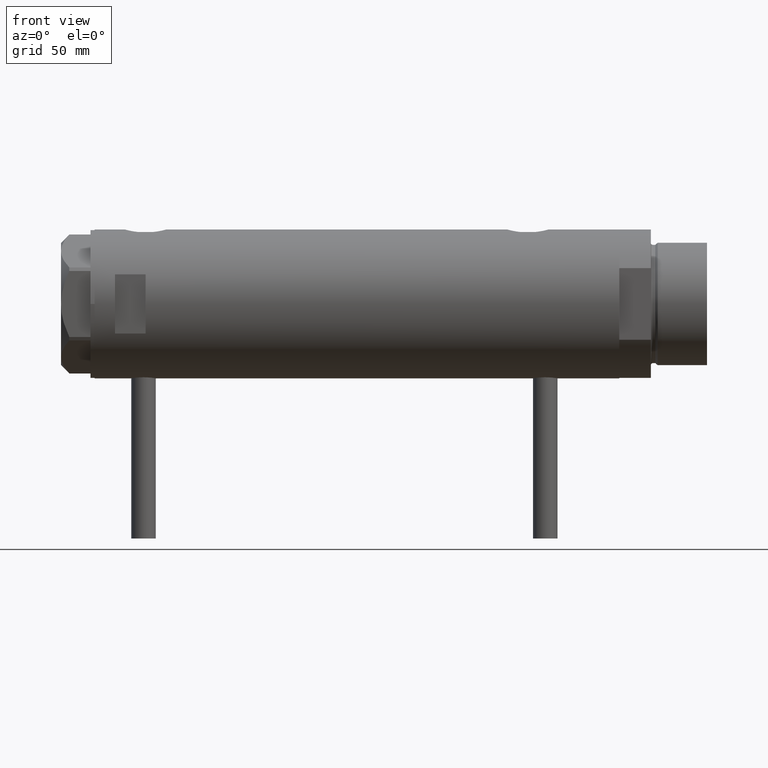
[diagram: clean part render]
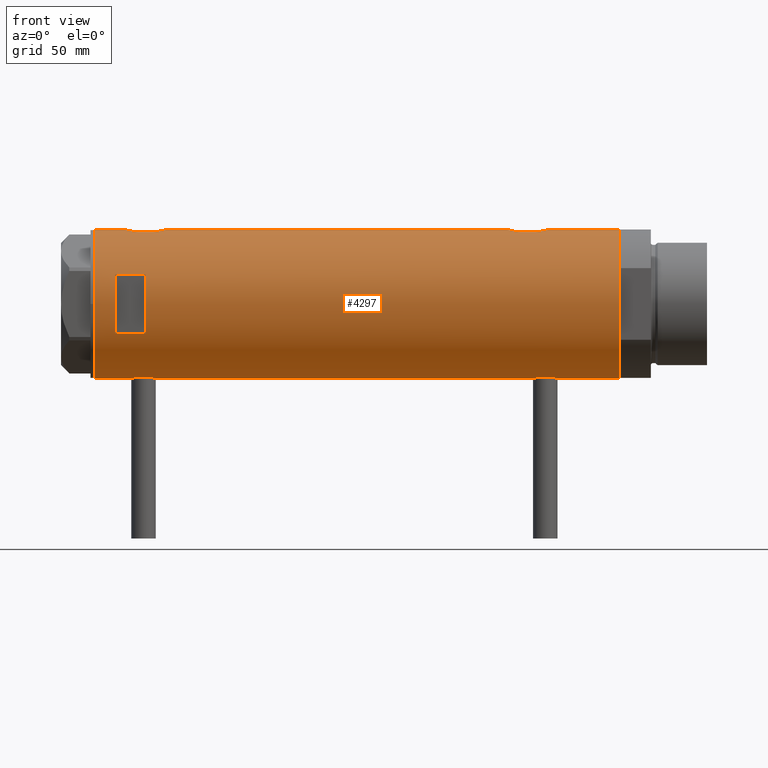
[diagram: same view with one face highlighted and labeled with its STEP entity id]
A machine part, front view. The second image highlights one B-rep face of the part: STEP entity #4297.
In plain terms, the highlighted cylindrical surface (partial cylindrical patch) has radius 36.5 mm, axis along (-1, -0, 0).
Its self-contained STEP definition (entity closure, byte-faithful):
#8 = CARTESIAN_POINT ( 'NONE',  ( 35.29999999999999716, -9.282241108697837362, 107.3702150475476458 ) ) ;
#15 = CARTESIAN_POINT ( 'NONE',  ( -36.46614432713124643, -1.622933015999963313, -98.39966597386846558 ) ) ;
#27 = CARTESIAN_POINT ( 'NONE',  ( 35.79638309643555516, -7.141827709208434349, 110.6670192696954729 ) ) ;
#110 = CARTESIAN_POINT ( 'NONE',  ( -36.50000000000000000, 4.469960493350315609E-15, -98.60000000000002274 ) ) ;
#115 = CARTESIAN_POINT ( 'NONE',  ( 35.29999999999999716, -9.282241108697837362, -128.6500000000000057 ) ) ;
#132 = ORIENTED_EDGE ( 'NONE', *, *, #2510, .F. ) ;
#133 = CARTESIAN_POINT ( 'NONE',  ( 0.000000000000000000, 0.000000000000000000, 128.6500000000000057 ) ) ;
#139 = CARTESIAN_POINT ( 'NONE',  ( -36.36635911126388265, -3.125815113635437292, 99.23394399592098125 ) ) ;
#140 = CARTESIAN_POINT ( 'NONE',  ( -36.21356728133255842, -4.566014386638764577, -88.07737339235256968 ) ) ;
#162 = CARTESIAN_POINT ( 'NONE',  ( -35.98855750525641639, -6.088954600884530777, 103.2256977384983543 ) ) ;
#187 = CARTESIAN_POINT ( 'NONE',  ( -36.01639592019625979, -5.922235714778421034, -90.34203197573087607 ) ) ;
#202 = VECTOR ( 'NONE', #921, 1000.000000000000000 ) ;
#207 = VECTOR ( 'NONE', #512, 1000.000000000000000 ) ;
#217 = CARTESIAN_POINT ( 'NONE',  ( -36.09582946723050867, -5.421573071064194060, 101.5139172162951695 ) ) ;
#218 = CARTESIAN_POINT ( 'NONE',  ( -35.96794010939611752, -6.209972807992079069, -91.53444451008647320 ) ) ;
#221 = CARTESIAN_POINT ( 'NONE',  ( -36.50000000000000000, 4.469960816887838430E-15, -128.6500000000000057 ) ) ;
#237 = CARTESIAN_POINT ( 'NONE',  ( -36.50000000000000000, 1.603939656238031057E-15, 110.9000000000000199 ) ) ;
#238 = CARTESIAN_POINT ( 'NONE',  ( -36.39558535855674393, -2.764807686268001774, -97.95894118545611207 ) ) ;
#248 = CARTESIAN_POINT ( 'NONE',  ( 36.50000000000000711, -0.5031001875915692700, 93.65000000000006253 ) ) ;
#286 = CARTESIAN_POINT ( 'NONE',  ( 0.000000000000000000, 0.000000000000000000, 103.6499999999999915 ) ) ;
#298 = CARTESIAN_POINT ( 'NONE',  ( 36.41856252531823657, -2.482507212621166470, -93.54956512846504779 ) ) ;
#318 = CARTESIAN_POINT ( 'NONE',  ( 14.49137674618942739, -33.50000000000000000, 103.6499999999999915 ) ) ;
#372 = CARTESIAN_POINT ( 'NONE',  ( 36.18674680775578167, -4.776679548204626258, 112.4389231693124884 ) ) ;
#391 = CARTESIAN_POINT ( 'NONE',  ( 36.09633718678917802, -5.417295330713078449, 112.0591486734521567 ) ) ;
#397 = CARTESIAN_POINT ( 'NONE',  ( -36.40915499150419521, -2.580495338846545472, 98.95394986644524238 ) ) ;
#407 = CARTESIAN_POINT ( 'NONE',  ( 36.21540437201188922, -4.554727782332258279, -74.94402370911376465 ) ) ;
#418 = EDGE_CURVE ( 'NONE', #2153, #4504, #3030, .T. ) ;
#433 = CARTESIAN_POINT ( 'NONE',  ( 35.93373217836897737, -6.415110096330620237, -76.16295733644906818 ) ) ;
#453 = DIRECTION ( 'NONE',  ( 0.000000000000000000, 0.000000000000000000, 1.000000000000000000 ) ) ;
#457 = CARTESIAN_POINT ( 'NONE',  ( 36.44931971524465553, -1.985988150549293341, 113.4636686053176220 ) ) ;
#491 = CARTESIAN_POINT ( 'NONE',  ( -36.30176144752229561, -3.814344296723636951, -97.31801701950256245 ) ) ;
#512 = DIRECTION ( 'NONE',  ( 0.000000000000000000, 0.000000000000000000, 1.000000000000000000 ) ) ;
#520 = CARTESIAN_POINT ( 'NONE',  ( 0.000000000000000000, 0.000000000000000000, -128.6500000000000057 ) ) ;
#525 = ORIENTED_EDGE ( 'NONE', *, *, #3200, .F. ) ;
#534 = LINE ( 'NONE', #882, #207 ) ;
#543 = CARTESIAN_POINT ( 'NONE',  ( -35.96087392089862789, -6.250243747806517369, -91.94082509223821376 ) ) ;
#561 = DIRECTION ( 'NONE',  ( 0.000000000000000000, 0.000000000000000000, 1.000000000000000000 ) ) ;
#562 = EDGE_LOOP ( 'NONE', ( #861, #3279, #1831, #3521, #3745, #525, #4772, #4720, #1804, #4735, #1174, #1575, #132, #3436, #2085, #643 ) ) ;
#566 = CARTESIAN_POINT ( 'NONE',  ( -36.06543684817881257, -5.617774235967367247, 107.4195444797170325 ) ) ;
#582 = EDGE_CURVE ( 'NONE', #1083, #587, #4421, .T. ) ;
#587 = VERTEX_POINT ( 'NONE', #3177 ) ;
#594 = CARTESIAN_POINT ( 'NONE',  ( 0.000000000000000000, 0.000000000000000000, -128.6500000000000057 ) ) ;
#596 = CARTESIAN_POINT ( 'NONE',  ( -36.26616882068471170, -4.135065845178865551, 109.3541505594009493 ) ) ;
#597 = CARTESIAN_POINT ( 'NONE',  ( -36.19599073318030236, -4.702920041824403263, -88.22846168323422944 ) ) ;
#610 = CARTESIAN_POINT ( 'NONE',  ( 36.34184199234172041, -3.427106516421255744, 94.24259086319970891 ) ) ;
#643 = ORIENTED_EDGE ( 'NONE', *, *, #4265, .F. ) ;
#681 = CARTESIAN_POINT ( 'NONE',  ( 36.34184199234172041, -3.427106516421255744, -93.25740913680034794 ) ) ;
#701 = LINE ( 'NONE', #4681, #3983 ) ;
#723 = CARTESIAN_POINT ( 'NONE',  ( 35.52323553852023963, -8.411295122831250026, -78.35247607048913210 ) ) ;
#727 = VECTOR ( 'NONE', #785, 1000.000000000000000 ) ;
#735 = CARTESIAN_POINT ( 'NONE',  ( 36.29582892817134621, -3.881628320031159873, 112.8793443453498924 ) ) ;
#754 = CARTESIAN_POINT ( 'NONE',  ( 36.50000000000000000, 0.000000000000000000, 93.65000000000001990 ) ) ;
#759 = CARTESIAN_POINT ( 'NONE',  ( 36.34247810649306132, -3.420510937483959513, 113.0598651840172835 ) ) ;
#763 = CARTESIAN_POINT ( 'NONE',  ( -36.49315367594273596, -0.8144497809045447845, 98.43960214445247914 ) ) ;
#772 = CARTESIAN_POINT ( 'NONE',  ( 36.41918031349423757, -2.473644131148923009, -74.14811654536809726 ) ) ;
#785 = DIRECTION ( 'NONE',  ( 0.000000000000000000, 0.000000000000000000, 1.000000000000000000 ) ) ;
#861 = ORIENTED_EDGE ( 'NONE', *, *, #2145, .F. ) ;
#867 = EDGE_CURVE ( 'NONE', #4651, #1751, #3420, .T. ) ;
#882 = CARTESIAN_POINT ( 'NONE',  ( 36.50000000000000000, 0.000000000000000000, -128.6500000000000057 ) ) ;
#883 = CARTESIAN_POINT ( 'NONE',  ( 35.79656810172926384, -7.133411935499478496, -90.86254878557676307 ) ) ;
#887 = CARTESIAN_POINT ( 'NONE',  ( -36.16125812922425098, -4.962923794285024393, 108.4544608591076553 ) ) ;
#889 = CARTESIAN_POINT ( 'NONE',  ( -36.50000000000001421, -0.4136690418839317762, -86.10000000000003695 ) ) ;
#893 = VECTOR ( 'NONE', #1076, 1000.000000000000000 ) ;
#918 = CARTESIAN_POINT ( 'NONE',  ( -36.36656776002988778, -3.137002187003158582, -86.92863590726371115 ) ) ;
#921 = DIRECTION ( 'NONE',  ( 0.000000000000000000, 0.000000000000000000, 1.000000000000000000 ) ) ;
#938 = CARTESIAN_POINT ( 'NONE',  ( -35.98821803976956346, -6.090959022952117330, 106.0657388314942011 ) ) ;
#939 = CARTESIAN_POINT ( 'NONE',  ( -35.96816095843705341, -6.208699946936198977, -93.17496377127788776 ) ) ;
#943 = LINE ( 'NONE', #221, #4432 ) ;
#956 = VERTEX_POINT ( 'NONE', #3107 ) ;
#961 = CARTESIAN_POINT ( 'NONE',  ( -36.02823773219768810, -5.849994928883552880, 102.4404489851435756 ) ) ;
#980 = CARTESIAN_POINT ( 'NONE',  ( 36.41856252531823657, -2.482507212621166470, 93.95043487153495221 ) ) ;
#989 = CARTESIAN_POINT ( 'NONE',  ( -36.26692673949090562, -4.128477002029503851, 99.94000012567833835 ) ) ;
#1035 = DIRECTION ( 'NONE',  ( 0.000000000000000000, 0.000000000000000000, 1.000000000000000000 ) ) ;
#1070 = CARTESIAN_POINT ( 'NONE',  ( 36.00068527486601511, -6.030855700422090848, 95.65798672872648467 ) ) ;
#1076 = DIRECTION ( 'NONE',  ( 0.000000000000000000, 0.000000000000000000, 1.000000000000000000 ) ) ;
#1083 = VERTEX_POINT ( 'NONE', #1658 ) ;
#1156 = CARTESIAN_POINT ( 'NONE',  ( 36.00092304812866217, -6.029438422680412302, -75.85691844426348496 ) ) ;
#1157 = VERTEX_POINT ( 'NONE', #3735 ) ;
#1174 = ORIENTED_EDGE ( 'NONE', *, *, #2673, .T. ) ;
#1186 = CARTESIAN_POINT ( 'NONE',  ( 36.50000000000000000, 4.344614706140975428E-19, 113.6500000000000199 ) ) ;
#1208 = DIRECTION ( 'NONE',  ( 0.000000000000000000, 0.000000000000000000, 1.000000000000000000 ) ) ;
#1233 = CARTESIAN_POINT ( 'NONE',  ( 35.39794035667548400, -8.909777761736840773, -88.49954159089452332 ) ) ;
#1239 = CARTESIAN_POINT ( 'NONE',  ( -35.98821803976956346, -6.090959022952117330, -90.93426116850585572 ) ) ;
#1254 = CARTESIAN_POINT ( 'NONE',  ( 35.29999999999999716, -9.282241108697837362, 107.3702150475476458 ) ) ;
#1264 = CARTESIAN_POINT ( 'NONE',  ( -36.40915499150419521, -2.580495338846545472, -98.04605013355478604 ) ) ;
#1293 = CARTESIAN_POINT ( 'NONE',  ( -36.02782481185206365, -5.852531070448506512, 106.8527700895219112 ) ) ;
#1307 = EDGE_CURVE ( 'NONE', #956, #3269, #1577, .T. ) ;
#1311 = CARTESIAN_POINT ( 'NONE',  ( 35.52320828895289395, -8.411622242316134646, -89.34772865944611908 ) ) ;
#1316 = CARTESIAN_POINT ( 'NONE',  ( -35.96095902952617251, -6.249754054240900913, 104.2334123457953154 ) ) ;
#1317 = DIRECTION ( 'NONE',  ( 1.000000000000000000, 0.000000000000000000, 0.000000000000000000 ) ) ;
#1326 = CARTESIAN_POINT ( 'NONE',  ( 36.29527920868844859, -3.886508670267145416, 94.42283724169139703 ) ) ;
#1332 = DIRECTION ( 'NONE',  ( 1.000000000000000000, 0.000000000000000000, 0.000000000000000000 ) ) ;
#1337 = CARTESIAN_POINT ( 'NONE',  ( -36.46417279006304568, -1.628689148039109247, -86.31246061306187300 ) ) ;
#1384 = VERTEX_POINT ( 'NONE', #2684 ) ;
#1394 = CARTESIAN_POINT ( 'NONE',  ( 35.93363298843768661, -6.415574104180976178, 95.96348527111113924 ) ) ;
#1406 = DIRECTION ( 'NONE',  ( -1.000000000000000000, 0.000000000000000000, 0.000000000000000000 ) ) ;
#1420 = CARTESIAN_POINT ( 'NONE',  ( 35.52320828895289395, -8.411622242316134646, 98.15227134055389513 ) ) ;
#1469 = CARTESIAN_POINT ( 'NONE',  ( -14.49137674618942739, -33.50000000000000000, 118.6500000000000057 ) ) ;
#1470 = CARTESIAN_POINT ( 'NONE',  ( 36.50000000000000000, 0.000000000000000000, -128.6500000000000057 ) ) ;
#1493 = CARTESIAN_POINT ( 'NONE',  ( 35.52323553852023963, -8.411295122831250026, 109.1475239295108537 ) ) ;
#1514 = CARTESIAN_POINT ( 'NONE',  ( 35.72583162417570435, -7.484316398521980496, -77.19957356280498573 ) ) ;
#1515 = VERTEX_POINT ( 'NONE', #3230 ) ;
#1542 = VERTEX_POINT ( 'NONE', #318 ) ;
#1544 = LINE ( 'NONE', #2990, #727 ) ;
#1575 = ORIENTED_EDGE ( 'NONE', *, *, #582, .F. ) ;
#1577 = B_SPLINE_CURVE_WITH_KNOTS ( 'NONE', 3,
 ( #1756, #3243, #1420, #4721, #3196, #2912, #4381, #1394, #1070, #2532, #4014, #1326, #610, #980, #1799, #2439, #248, #1708 ),
 .UNSPECIFIED., .F., .F.,
 ( 4, 2, 2, 2, 2, 2, 2, 2, 4 ),
 ( -0.01189883390545606531, -0.008924125429092034240, -0.008180448310001031675, -0.007436771190910029979, -0.005949416952728023983, -0.004462062714546017987, -0.002974708476364010257, -0.001487354238182005128, 1.734723475976807094E-18 ),
 .UNSPECIFIED. ) ;
#1589 = EDGE_CURVE ( 'NONE', #3504, #2903, #2652, .T. ) ;
#1595 = CARTESIAN_POINT ( 'NONE',  ( -36.21356728133255842, -4.566014386638764577, 108.9226266076475014 ) ) ;
#1597 = CARTESIAN_POINT ( 'NONE',  ( -36.26616882068471170, -4.135065845178865551, -87.64584944059910754 ) ) ;
#1617 = CARTESIAN_POINT ( 'NONE',  ( -36.26692673949090562, -4.128477002029503851, -97.05999987432167586 ) ) ;
#1658 = CARTESIAN_POINT ( 'NONE',  ( -36.50000000000000000, 4.469960816887838430E-15, 128.6500000000000057 ) ) ;
#1679 = B_SPLINE_CURVE_WITH_KNOTS ( 'NONE', 3,
 ( #3737, #1955, #763, #1885, #3713, #397, #1857, #139, #2720, #2078, #989, #3918, #2058, #217, #2377, #961, #4577, #3469, #162, #4269, #1316, #4244, #4187, #938, #3134, #2827, #1293, #566, #2779, #4299, #887, #2031, #1595, #596, #2449, #3869, #3892, #2421, #3080, #2801, #3525, #3940, #3549, #237 ),
 .UNSPECIFIED., .F., .F.,
 ( 4, 2, 2, 2, 2, 2, 2, 2, 2, 2, 2, 2, 2, 2, 2, 2, 2, 2, 2, 2, 2, 4 ),
 ( 0.01957644481942643136, 0.02079966591703043266, 0.02202288701463443049, 0.02263449756343642941, 0.02324610811223842832, 0.02446932920984242615, 0.02569255030744642398, 0.02691577140505042529, 0.02752738195385242420, 0.02813899250265442659, 0.02936221360025846605, 0.03058543469786250205, 0.03119704524666452178, 0.03180865579546654498, 0.03303187689307057751, 0.03364348744187262152, 0.03425509799067465166, 0.03547831908827869807, 0.03670154018588274447, 0.03731315073468477461, 0.03792476128348679781, 0.03914798238109084422 ),
 .UNSPECIFIED. ) ;
#1699 = CARTESIAN_POINT ( 'NONE',  ( -36.06543684817881257, -5.617774235967367247, -89.58045552028303860 ) ) ;
#1707 = ORIENTED_EDGE ( 'NONE', *, *, #1589, .F. ) ;
#1708 = CARTESIAN_POINT ( 'NONE',  ( 36.50000000000000000, 0.000000000000000000, 93.65000000000001990 ) ) ;
#1751 = VERTEX_POINT ( 'NONE', #3355 ) ;
#1756 = CARTESIAN_POINT ( 'NONE',  ( 35.29999999999999716, -9.282241108697837362, 99.92978495245239401 ) ) ;
#1780 = EDGE_LOOP ( 'NONE', ( #3118, #3299, #1707, #2737 ) ) ;
#1782 = LINE ( 'NONE', #2470, #893 ) ;
#1799 = CARTESIAN_POINT ( 'NONE',  ( 36.44881677724178104, -1.995085670027227032, 93.83819654630536888 ) ) ;
#1804 = ORIENTED_EDGE ( 'NONE', *, *, #3952, .T. ) ;
#1830 = CARTESIAN_POINT ( 'NONE',  ( 36.00092304812866217, -6.029438422680412302, 111.6430815557365008 ) ) ;
#1831 = ORIENTED_EDGE ( 'NONE', *, *, #4731, .T. ) ;
#1857 = CARTESIAN_POINT ( 'NONE',  ( -36.39558535855674393, -2.764807686268001774, 99.04105881454390214 ) ) ;
#1883 = VECTOR ( 'NONE', #4397, 1000.000000000000000 ) ;
#1885 = CARTESIAN_POINT ( 'NONE',  ( -36.46614432713124643, -1.622933015999963313, 98.60033402613153442 ) ) ;
#1896 = CARTESIAN_POINT ( 'NONE',  ( 14.49137674618942739, -33.50000000000000000, -128.6500000000000057 ) ) ;
#1917 = DIRECTION ( 'NONE',  ( -0.000000000000000000, 0.000000000000000000, -1.000000000000000000 ) ) ;
#1921 = CARTESIAN_POINT ( 'NONE',  ( 36.50000000000000711, -0.4962708696651116913, -73.85000000000000853 ) ) ;
#1924 = CARTESIAN_POINT ( 'NONE',  ( 36.41918031349423757, -2.473644131148923009, 113.3518834546319169 ) ) ;
#1955 = CARTESIAN_POINT ( 'NONE',  ( -36.49999999999999289, -0.4082012689449562859, 98.40000000000001990 ) ) ;
#1957 = CARTESIAN_POINT ( 'NONE',  ( -36.09582946723050867, -5.421573071064194060, -95.48608278370487312 ) ) ;
#1983 = CARTESIAN_POINT ( 'NONE',  ( -36.30107494031872051, -3.820993528321233068, -87.38693846463694115 ) ) ;
#2016 = VERTEX_POINT ( 'NONE', #4066 ) ;
#2031 = CARTESIAN_POINT ( 'NONE',  ( -36.19599073318030236, -4.702920041824403263, 108.7715383167658132 ) ) ;
#2033 = CARTESIAN_POINT ( 'NONE',  ( -36.47262891311153510, -1.427622242603855396, -86.26175370788303098 ) ) ;
#2058 = CARTESIAN_POINT ( 'NONE',  ( -36.16096637594732499, -4.968588355849258953, 100.8366550718224346 ) ) ;
#2078 = CARTESIAN_POINT ( 'NONE',  ( -36.30176144752229561, -3.814344296723636951, 99.68198298049746597 ) ) ;
#2085 = ORIENTED_EDGE ( 'NONE', *, *, #2230, .F. ) ;
#2096 = CARTESIAN_POINT ( 'NONE',  ( 36.50000000000000711, -0.5031001875915692700, -93.85000000000003695 ) ) ;
#2097 = VERTEX_POINT ( 'NONE', #2352 ) ;
#2142 = CARTESIAN_POINT ( 'NONE',  ( 36.50000000000000000, 0.000000000000000000, -93.85000000000000853 ) ) ;
#2145 = EDGE_CURVE ( 'NONE', #2153, #4336, #943, .T. ) ;
#2153 = VERTEX_POINT ( 'NONE', #3213 ) ;
#2185 = LINE ( 'NONE', #1896, #4205 ) ;
#2223 = CARTESIAN_POINT ( 'NONE',  ( 35.29999999999999716, -9.282241108697837362, -128.6500000000000057 ) ) ;
#2229 = CARTESIAN_POINT ( 'NONE',  ( 35.39807338191549491, -8.909271871950329214, -79.19919617267214562 ) ) ;
#2230 = EDGE_CURVE ( 'NONE', #1157, #2016, #3942, .T. ) ;
#2236 = CARTESIAN_POINT ( 'NONE',  ( 35.72583162417570435, -7.484316398521980496, 110.3004264371950285 ) ) ;
#2262 = EDGE_CURVE ( 'NONE', #1515, #1542, #2505, .T. ) ;
#2318 = CARTESIAN_POINT ( 'NONE',  ( 36.50000000000000000, 4.344614706140975428E-19, 113.6500000000000199 ) ) ;
#2338 = CARTESIAN_POINT ( 'NONE',  ( 35.83108131285856501, -6.958268797611358636, -91.03630783372828716 ) ) ;
#2342 = AXIS2_PLACEMENT_3D ( 'NONE', #286, #1035, #1406 ) ;
#2348 = CARTESIAN_POINT ( 'NONE',  ( -36.14410773716529235, -5.085921866747754372, -88.71164121579529649 ) ) ;
#2352 = CARTESIAN_POINT ( 'NONE',  ( -36.50000000000000000, 1.603939656238031057E-15, 110.9000000000000199 ) ) ;
#2377 = CARTESIAN_POINT ( 'NONE',  ( -36.06605150775667568, -5.613853192123348101, 101.8723431172745961 ) ) ;
#2378 = CARTESIAN_POINT ( 'NONE',  ( -36.50000000000000000, 1.603939656238031057E-15, -86.10000000000000853 ) ) ;
#2401 = CARTESIAN_POINT ( 'NONE',  ( -36.19666146462960654, -4.704890678739094945, -96.48429859510783047 ) ) ;
#2421 = CARTESIAN_POINT ( 'NONE',  ( -36.43335814606993495, -2.212659578761325463, 110.4987639916951423 ) ) ;
#2439 = CARTESIAN_POINT ( 'NONE',  ( 36.48960339336947101, -1.002724032967601708, 93.68775134026509477 ) ) ;
#2449 = CARTESIAN_POINT ( 'NONE',  ( -36.30107494031872051, -3.820993528321233068, 109.6130615353631725 ) ) ;
#2470 = CARTESIAN_POINT ( 'NONE',  ( 36.50000000000000000, 0.000000000000000000, -128.6500000000000057 ) ) ;
#2471 = CARTESIAN_POINT ( 'NONE',  ( -36.50000000000000000, 4.469960493350315609E-15, -98.60000000000002274 ) ) ;
#2489 = CARTESIAN_POINT ( 'NONE',  ( 36.29527920868844859, -3.886508670267145416, -93.07716275830861719 ) ) ;
#2504 = VECTOR ( 'NONE', #3016, 1000.000000000000000 ) ;
#2505 = CIRCLE ( 'NONE', #2342, 36.50000000000000000 ) ;
#2510 = EDGE_CURVE ( 'NONE', #2097, #1083, #1544, .T. ) ;
#2518 = B_SPLINE_CURVE_WITH_KNOTS ( 'NONE', 3,
 ( #1186, #3784, #3024, #457, #1924, #759, #735, #3683, #372, #3706, #391, #1830, #3314, #27, #2236, #1493, #3732, #8 ),
 .UNSPECIFIED., .F., .F.,
 ( 4, 2, 2, 2, 2, 2, 2, 2, 4 ),
 ( 0.01190956515753145012, 0.01339852714138290227, 0.01488748912523435441, 0.01637645110908580656, 0.01712093210101153090, 0.01786541309293725871, 0.01935437507678870739, 0.02084333706064015260, 0.02382126102834301526 ),
 .UNSPECIFIED. ) ;
#2532 = CARTESIAN_POINT ( 'NONE',  ( 36.12792682573228831, -5.214735277442335004, 95.10306882011305163 ) ) ;
#2536 = CARTESIAN_POINT ( 'NONE',  ( 36.00068527486601511, -6.030855700422090848, -91.84201327127355796 ) ) ;
#2546 = EDGE_CURVE ( 'NONE', #2016, #2097, #1679, .T. ) ;
#2557 = CARTESIAN_POINT ( 'NONE',  ( 36.48988302519020266, -0.9927202255321166957, -73.88673010588699697 ) ) ;
#2587 = CARTESIAN_POINT ( 'NONE',  ( 36.12724769814495573, -5.207618053557754756, -75.30935879511540065 ) ) ;
#2631 = CARTESIAN_POINT ( 'NONE',  ( 36.34247810649306132, -3.420510937483959513, -74.44013481598275916 ) ) ;
#2652 = CIRCLE ( 'NONE', #4511, 36.50000000000000000 ) ;
#2659 = DIRECTION ( 'NONE',  ( 1.000000000000000000, 0.000000000000000000, 0.000000000000000000 ) ) ;
#2673 = EDGE_CURVE ( 'NONE', #4272, #587, #1782, .T. ) ;
#2684 = CARTESIAN_POINT ( 'NONE',  ( 36.50000000000000000, 4.344614706140975428E-19, -73.85000000000000853 ) ) ;
#2716 = CARTESIAN_POINT ( 'NONE',  ( 35.29999999999999716, -9.282241108697837362, -87.57021504754763441 ) ) ;
#2720 = CARTESIAN_POINT ( 'NONE',  ( -36.35061318816141096, -3.303361544904982239, 99.34035958056982452 ) ) ;
#2737 = ORIENTED_EDGE ( 'NONE', *, *, #3209, .F. ) ;
#2753 = CARTESIAN_POINT ( 'NONE',  ( -35.98855750525641639, -6.088954600884530777, -93.77430226150167414 ) ) ;
#2779 = CARTESIAN_POINT ( 'NONE',  ( -36.09514898390870030, -5.426114745500164815, 107.7783865294614429 ) ) ;
#2780 = FACE_OUTER_BOUND ( 'NONE', #562, .T. ) ;
#2797 = CARTESIAN_POINT ( 'NONE',  ( 35.69273631926343882, -7.635692914629149008, -90.31200195651490503 ) ) ;
#2801 = CARTESIAN_POINT ( 'NONE',  ( -36.46417279006304568, -1.628689148039109247, 110.6875393869381980 ) ) ;
#2827 = CARTESIAN_POINT ( 'NONE',  ( -36.01639592019625979, -5.922235714778421034, 106.6579680242691524 ) ) ;
#2888 = CARTESIAN_POINT ( 'NONE',  ( 36.12792682573228831, -5.214735277442335004, -92.39693117988700521 ) ) ;
#2903 = VERTEX_POINT ( 'NONE', #1469 ) ;
#2912 = CARTESIAN_POINT ( 'NONE',  ( 35.79656810172926384, -7.133411935499478496, 96.63745121442323693 ) ) ;
#2952 = CARTESIAN_POINT ( 'NONE',  ( 35.29999999999999716, -9.282241108697837362, -80.12978495245238264 ) ) ;
#2980 = CARTESIAN_POINT ( 'NONE',  ( 36.29582892817134621, -3.881628320031159873, -74.62065565465013606 ) ) ;
#2990 = CARTESIAN_POINT ( 'NONE',  ( -36.50000000000000000, 4.469960816887838430E-15, -128.6500000000000057 ) ) ;
#2993 = EDGE_CURVE ( 'NONE', #1384, #3269, #534, .T. ) ;
#2998 = CARTESIAN_POINT ( 'NONE',  ( 36.50000000000000000, 0.000000000000000000, -93.85000000000000853 ) ) ;
#3010 = CARTESIAN_POINT ( 'NONE',  ( -36.44621655743049615, -2.016281777336074832, -98.27982976699118467 ) ) ;
#3011 = VERTEX_POINT ( 'NONE', #1254 ) ;
#3016 = DIRECTION ( 'NONE',  ( 0.000000000000000000, 0.000000000000000000, 1.000000000000000000 ) ) ;
#3024 = CARTESIAN_POINT ( 'NONE',  ( 36.48988302519020266, -0.9927202255321166957, 113.6132698941130315 ) ) ;
#3030 = CIRCLE ( 'NONE', #3415, 36.50000000000000000 ) ;
#3058 = CARTESIAN_POINT ( 'NONE',  ( -36.49999999999999289, -0.4082012689449562859, -98.60000000000002274 ) ) ;
#3080 = CARTESIAN_POINT ( 'NONE',  ( -36.44454782745417276, -2.020757099930494682, 110.5678586442100055 ) ) ;
#3081 = CARTESIAN_POINT ( 'NONE',  ( -36.35061318816141096, -3.303361544904982239, -97.65964041943021812 ) ) ;
#3107 = CARTESIAN_POINT ( 'NONE',  ( 35.29999999999999716, -9.282241108697837362, 99.92978495245239401 ) ) ;
#3118 = ORIENTED_EDGE ( 'NONE', *, *, #2262, .F. ) ;
#3134 = CARTESIAN_POINT ( 'NONE',  ( -35.99659093586380010, -6.041447834568799635, 106.2642241201482705 ) ) ;
#3135 = CARTESIAN_POINT ( 'NONE',  ( -36.43335814606993495, -2.212659578761325463, -86.50123600830492876 ) ) ;
#3161 = CARTESIAN_POINT ( 'NONE',  ( -35.99659093586380010, -6.041447834568799635, -90.73577587985178639 ) ) ;
#3177 = CARTESIAN_POINT ( 'NONE',  ( 36.50000000000000000, 0.000000000000000000, 128.6500000000000057 ) ) ;
#3182 = CARTESIAN_POINT ( 'NONE',  ( -35.99695583620881933, -6.039273428153905776, -93.97224444987759284 ) ) ;
#3187 = VERTEX_POINT ( 'NONE', #2998 ) ;
#3196 = CARTESIAN_POINT ( 'NONE',  ( 35.72742963626381396, -7.471989379615407323, 96.99937739587225849 ) ) ;
#3200 = EDGE_CURVE ( 'NONE', #1384, #1751, #3246, .T. ) ;
#3209 = EDGE_CURVE ( 'NONE', #1542, #3504, #2185, .T. ) ;
#3213 = CARTESIAN_POINT ( 'NONE',  ( -36.50000000000000000, 4.469960816887838430E-15, -128.6500000000000057 ) ) ;
#3228 = CARTESIAN_POINT ( 'NONE',  ( 36.44881677724178104, -1.995085670027227032, -93.66180345369463112 ) ) ;
#3230 = CARTESIAN_POINT ( 'NONE',  ( -14.49137674618942739, -33.50000000000000000, 103.6499999999999915 ) ) ;
#3243 = CARTESIAN_POINT ( 'NONE',  ( 35.39794035667548400, -8.909777761736840773, 99.00045840910550510 ) ) ;
#3246 = B_SPLINE_CURVE_WITH_KNOTS ( 'NONE', 3,
 ( #3361, #1921, #2557, #4497, #772, #2631, #2980, #407, #4455, #2587, #3758, #1156, #433, #3724, #1514, #723, #2229, #2952 ),
 .UNSPECIFIED., .F., .F.,
 ( 4, 2, 2, 2, 2, 2, 2, 2, 4 ),
 ( 0.01190956515753145012, 0.01339852714138290227, 0.01488748912523435441, 0.01637645110908580656, 0.01712093210101153090, 0.01786541309293725871, 0.01935437507678870739, 0.02084333706064015260, 0.02382126102834301526 ),
 .UNSPECIFIED. ) ;
#3269 = VERTEX_POINT ( 'NONE', #754 ) ;
#3279 = ORIENTED_EDGE ( 'NONE', *, *, #418, .T. ) ;
#3299 = ORIENTED_EDGE ( 'NONE', *, *, #3725, .F. ) ;
#3314 = CARTESIAN_POINT ( 'NONE',  ( 35.93373217836897737, -6.415110096330620237, 111.3370426635508892 ) ) ;
#3322 = CARTESIAN_POINT ( 'NONE',  ( -36.49315367594273596, -0.8144497809045447845, -98.56039785554753507 ) ) ;
#3336 = VECTOR ( 'NONE', #3718, 1000.000000000000000 ) ;
#3355 = CARTESIAN_POINT ( 'NONE',  ( 35.29999999999999716, -9.282241108697837362, -80.12978495245238264 ) ) ;
#3361 = CARTESIAN_POINT ( 'NONE',  ( 36.50000000000000000, 4.344614706140975428E-19, -73.85000000000000853 ) ) ;
#3399 = DIRECTION ( 'NONE',  ( 1.000000000000000000, 0.000000000000000000, 0.000000000000000000 ) ) ;
#3415 = AXIS2_PLACEMENT_3D ( 'NONE', #594, #1208, #2659 ) ;
#3420 = LINE ( 'NONE', #2223, #3336 ) ;
#3436 = ORIENTED_EDGE ( 'NONE', *, *, #2546, .F. ) ;
#3447 = CARTESIAN_POINT ( 'NONE',  ( -36.02823773219768810, -5.849994928883552880, -94.55955101485639602 ) ) ;
#3464 = CARTESIAN_POINT ( 'NONE',  ( 35.93363298843768661, -6.415574104180976178, -91.53651472888896024 ) ) ;
#3469 = CARTESIAN_POINT ( 'NONE',  ( -35.99695583620881933, -6.039273428153905776, 103.0277555501224782 ) ) ;
#3471 = DIRECTION ( 'NONE',  ( 0.000000000000000000, 0.000000000000000000, 1.000000000000000000 ) ) ;
#3504 = VERTEX_POINT ( 'NONE', #4328 ) ;
#3516 = CARTESIAN_POINT ( 'NONE',  ( 35.29999999999999716, -9.282241108697837362, -87.57021504754763441 ) ) ;
#3521 = ORIENTED_EDGE ( 'NONE', *, *, #4690, .F. ) ;
#3525 = CARTESIAN_POINT ( 'NONE',  ( -36.47262891311153510, -1.427622242603855396, 110.7382462921170259 ) ) ;
#3526 = CARTESIAN_POINT ( 'NONE',  ( -35.96095902952617251, -6.249754054240900913, -92.76658765420472719 ) ) ;
#3549 = CARTESIAN_POINT ( 'NONE',  ( -36.50000000000001421, -0.4136690418839317762, 110.9000000000000483 ) ) ;
#3550 = CARTESIAN_POINT ( 'NONE',  ( -36.01675918113430441, -5.920026275461277798, -94.36439556517893834 ) ) ;
#3635 = DIRECTION ( 'NONE',  ( 0.000000000000000000, 0.000000000000000000, 1.000000000000000000 ) ) ;
#3663 = AXIS2_PLACEMENT_3D ( 'NONE', #520, #3471, #1317 ) ;
#3683 = CARTESIAN_POINT ( 'NONE',  ( 36.21540437201188922, -4.554727782332258279, 112.5559762908862638 ) ) ;
#3695 = CARTESIAN_POINT ( 'NONE',  ( -14.49137674618942739, -33.50000000000000000, -128.6500000000000057 ) ) ;
#3706 = CARTESIAN_POINT ( 'NONE',  ( 36.12724769814495573, -5.207618053557754756, 112.1906412048846704 ) ) ;
#3713 = CARTESIAN_POINT ( 'NONE',  ( -36.44621655743049615, -2.016281777336074832, 98.72017023300885796 ) ) ;
#3718 = DIRECTION ( 'NONE',  ( 0.000000000000000000, 0.000000000000000000, 1.000000000000000000 ) ) ;
#3724 = CARTESIAN_POINT ( 'NONE',  ( 35.79638309643555516, -7.141827709208434349, -76.83298073030452713 ) ) ;
#3725 = EDGE_CURVE ( 'NONE', #2903, #1515, #3992, .T. ) ;
#3732 = CARTESIAN_POINT ( 'NONE',  ( 35.39807338191549491, -8.909271871950329214, 108.3008038273278260 ) ) ;
#3735 = CARTESIAN_POINT ( 'NONE',  ( -36.50000000000000000, 1.603939656238031057E-15, -86.10000000000000853 ) ) ;
#3737 = CARTESIAN_POINT ( 'NONE',  ( -36.50000000000000000, 4.469960493350315609E-15, 98.40000000000001990 ) ) ;
#3745 = ORIENTED_EDGE ( 'NONE', *, *, #867, .T. ) ;
#3758 = CARTESIAN_POINT ( 'NONE',  ( 36.09633718678917802, -5.417295330713078449, -75.44085132654788595 ) ) ;
#3784 = CARTESIAN_POINT ( 'NONE',  ( 36.50000000000000711, -0.4962708696651116913, 113.6500000000000483 ) ) ;
#3845 = CYLINDRICAL_SURFACE ( 'NONE', #3663, 36.50000000000000000 ) ;
#3869 = CARTESIAN_POINT ( 'NONE',  ( -36.36656776002988778, -3.137002187003158582, 110.0713640927363031 ) ) ;
#3870 = CARTESIAN_POINT ( 'NONE',  ( -36.44454782745417276, -2.020757099930494682, -86.43214135579003710 ) ) ;
#3892 = CARTESIAN_POINT ( 'NONE',  ( -36.39621039793029666, -2.776267550998806843, 110.2643075310677858 ) ) ;
#3893 = CARTESIAN_POINT ( 'NONE',  ( -36.16096637594732499, -4.968588355849258953, -96.16334492817762225 ) ) ;
#3918 = CARTESIAN_POINT ( 'NONE',  ( -36.19666146462960654, -4.704890678739094945, 100.5157014048921553 ) ) ;
#3919 = FACE_BOUND ( 'NONE', #1780, .T. ) ;
#3940 = CARTESIAN_POINT ( 'NONE',  ( -36.49297138689434661, -0.8222528563518530786, 110.8593311205343923 ) ) ;
#3942 = LINE ( 'NONE', #4224, #202 ) ;
#3952 = EDGE_CURVE ( 'NONE', #956, #3011, #4449, .T. ) ;
#3983 = VECTOR ( 'NONE', #3635, 1000.000000000000000 ) ;
#3992 = LINE ( 'NONE', #3695, #1883 ) ;
#4000 = CARTESIAN_POINT ( 'NONE',  ( 36.18850502651835654, -4.779575967213809840, -92.64779152890152147 ) ) ;
#4014 = CARTESIAN_POINT ( 'NONE',  ( 36.18850502651835654, -4.779575967213809840, 94.85220847109847853 ) ) ;
#4066 = CARTESIAN_POINT ( 'NONE',  ( -36.50000000000000000, 4.469960493350315609E-15, 98.40000000000001990 ) ) ;
#4181 = CARTESIAN_POINT ( 'NONE',  ( 35.72742963626381396, -7.471989379615407323, -90.50062260412776993 ) ) ;
#4187 = CARTESIAN_POINT ( 'NONE',  ( -35.96794010939611752, -6.209972807992079069, 105.4655554899135836 ) ) ;
#4189 = CARTESIAN_POINT ( 'NONE',  ( -36.39621039793029666, -2.776267550998806843, -86.73569246893224260 ) ) ;
#4205 = VECTOR ( 'NONE', #453, 1000.000000000000000 ) ;
#4219 = CARTESIAN_POINT ( 'NONE',  ( -36.16125812922425098, -4.962923794285024393, -88.54553914089245836 ) ) ;
#4224 = CARTESIAN_POINT ( 'NONE',  ( -36.50000000000000000, 4.469960816887838430E-15, -128.6500000000000057 ) ) ;
#4244 = CARTESIAN_POINT ( 'NONE',  ( -35.96087392089862789, -6.250243747806517369, 105.0591749077618431 ) ) ;
#4265 = EDGE_CURVE ( 'NONE', #4336, #1157, #4438, .T. ) ;
#4269 = CARTESIAN_POINT ( 'NONE',  ( -35.96816095843705341, -6.208699946936198977, 103.8250362287221407 ) ) ;
#4272 = VERTEX_POINT ( 'NONE', #2318 ) ;
#4273 = AXIS2_PLACEMENT_3D ( 'NONE', #133, #561, #1332 ) ;
#4297 = ADVANCED_FACE ( 'NONE', ( #2780, #3919 ), #3845, .T. ) ;
#4299 = CARTESIAN_POINT ( 'NONE',  ( -36.14410773716529235, -5.085921866747754372, 108.2883587842047177 ) ) ;
#4307 = B_SPLINE_CURVE_WITH_KNOTS ( 'NONE', 3,
 ( #2716, #1233, #1311, #2797, #4181, #883, #2338, #3464, #2536, #2888, #4000, #2489, #681, #298, #3228, #4724, #2096, #2142 ),
 .UNSPECIFIED., .F., .F.,
 ( 4, 2, 2, 2, 2, 2, 2, 2, 4 ),
 ( -0.01189883390545606531, -0.008924125429092034240, -0.008180448310001031675, -0.007436771190910029979, -0.005949416952728023983, -0.004462062714546017987, -0.002974708476364010257, -0.001487354238182005128, 1.734723475976807094E-18 ),
 .UNSPECIFIED. ) ;
#4328 = CARTESIAN_POINT ( 'NONE',  ( 14.49137674618942739, -33.50000000000000000, 118.6500000000000057 ) ) ;
#4336 = VERTEX_POINT ( 'NONE', #2471 ) ;
#4381 = CARTESIAN_POINT ( 'NONE',  ( 35.83108131285856501, -6.958268797611358636, 96.46369216627179810 ) ) ;
#4397 = DIRECTION ( 'NONE',  ( -0.000000000000000000, -0.000000000000000000, -1.000000000000000000 ) ) ;
#4421 = CIRCLE ( 'NONE', #4273, 36.50000000000000000 ) ;
#4432 = VECTOR ( 'NONE', #4642, 1000.000000000000000 ) ;
#4438 = B_SPLINE_CURVE_WITH_KNOTS ( 'NONE', 3,
 ( #110, #3058, #3322, #15, #3010, #1264, #238, #4612, #3081, #491, #1617, #2401, #3893, #1957, #4578, #3447, #3550, #3182, #2753, #939, #3526, #543, #218, #1239, #3161, #187, #4639, #1699, #4662, #2348, #4219, #597, #140, #1597, #1983, #918, #4189, #3135, #3870, #1337, #2033, #4555, #889, #2378 ),
 .UNSPECIFIED., .F., .F.,
 ( 4, 2, 2, 2, 2, 2, 2, 2, 2, 2, 2, 2, 2, 2, 2, 2, 2, 2, 2, 2, 2, 4 ),
 ( 0.01957644481942643136, 0.02079966591703043266, 0.02202288701463443049, 0.02263449756343642941, 0.02324610811223842832, 0.02446932920984242615, 0.02569255030744642398, 0.02691577140505042529, 0.02752738195385242420, 0.02813899250265442659, 0.02936221360025846605, 0.03058543469786250205, 0.03119704524666452178, 0.03180865579546654498, 0.03303187689307057751, 0.03364348744187262152, 0.03425509799067465166, 0.03547831908827869807, 0.03670154018588274447, 0.03731315073468477461, 0.03792476128348679781, 0.03914798238109084422 ),
 .UNSPECIFIED. ) ;
#4449 = LINE ( 'NONE', #115, #2504 ) ;
#4455 = CARTESIAN_POINT ( 'NONE',  ( 36.18674680775578167, -4.776679548204626258, -75.06107683068754000 ) ) ;
#4471 = CARTESIAN_POINT ( 'NONE',  ( 0.000000000000000000, 0.000000000000000000, 118.6500000000000057 ) ) ;
#4497 = CARTESIAN_POINT ( 'NONE',  ( 36.44931971524465553, -1.985988150549293341, -74.03633139468234958 ) ) ;
#4504 = VERTEX_POINT ( 'NONE', #1470 ) ;
#4511 = AXIS2_PLACEMENT_3D ( 'NONE', #4471, #1917, #3399 ) ;
#4555 = CARTESIAN_POINT ( 'NONE',  ( -36.49297138689434661, -0.8222528563518530786, -86.14066887946569295 ) ) ;
#4577 = CARTESIAN_POINT ( 'NONE',  ( -36.01675918113430441, -5.920026275461277798, 102.6356044348211043 ) ) ;
#4578 = CARTESIAN_POINT ( 'NONE',  ( -36.06605150775667568, -5.613853192123348101, -95.12765688272547493 ) ) ;
#4588 = EDGE_CURVE ( 'NONE', #4272, #3011, #2518, .T. ) ;
#4612 = CARTESIAN_POINT ( 'NONE',  ( -36.36635911126388265, -3.125815113635437292, -97.76605600407906138 ) ) ;
#4639 = CARTESIAN_POINT ( 'NONE',  ( -36.02782481185206365, -5.852531070448506512, -90.14722991047811718 ) ) ;
#4642 = DIRECTION ( 'NONE',  ( 0.000000000000000000, 0.000000000000000000, 1.000000000000000000 ) ) ;
#4651 = VERTEX_POINT ( 'NONE', #3516 ) ;
#4662 = CARTESIAN_POINT ( 'NONE',  ( -36.09514898390870030, -5.426114745500164815, -89.22161347053862812 ) ) ;
#4681 = CARTESIAN_POINT ( 'NONE',  ( 36.50000000000000000, 0.000000000000000000, -128.6500000000000057 ) ) ;
#4690 = EDGE_CURVE ( 'NONE', #4651, #3187, #4307, .T. ) ;
#4720 = ORIENTED_EDGE ( 'NONE', *, *, #1307, .F. ) ;
#4721 = CARTESIAN_POINT ( 'NONE',  ( 35.69273631926343882, -7.635692914629149008, 97.18799804348513760 ) ) ;
#4724 = CARTESIAN_POINT ( 'NONE',  ( 36.48960339336947101, -1.002724032967601708, -93.81224865973500471 ) ) ;
#4731 = EDGE_CURVE ( 'NONE', #4504, #3187, #701, .T. ) ;
#4735 = ORIENTED_EDGE ( 'NONE', *, *, #4588, .F. ) ;
#4772 = ORIENTED_EDGE ( 'NONE', *, *, #2993, .T. ) ;